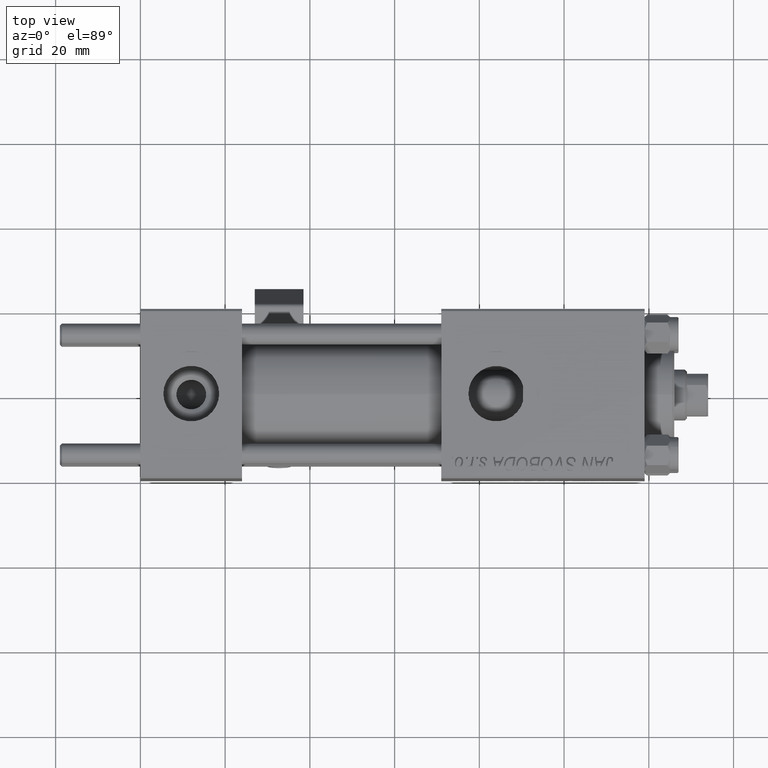
[diagram: clean part render]
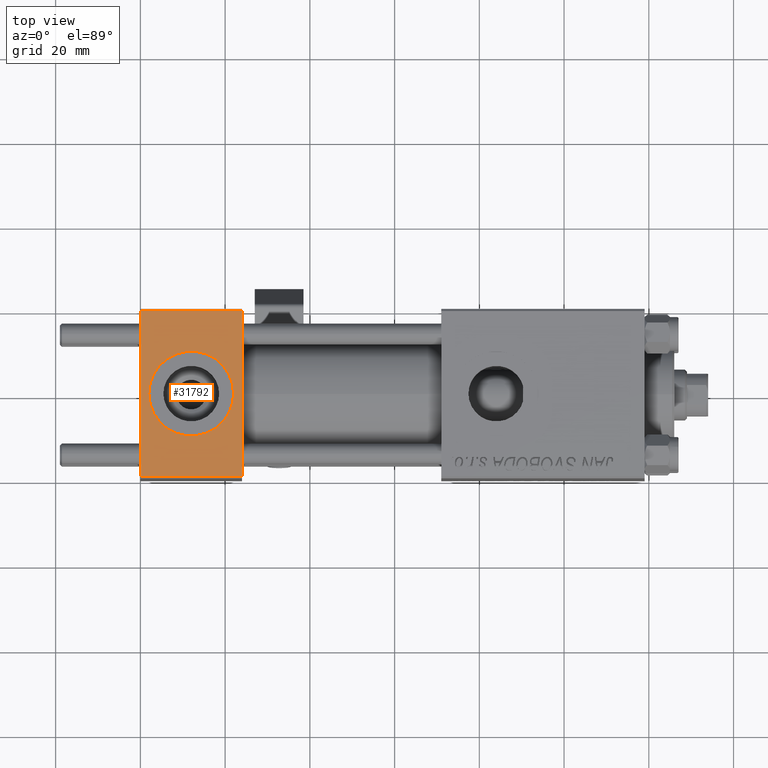
[diagram: same view with one face highlighted and labeled with its STEP entity id]
A machine part, top view. The second image highlights one B-rep face of the part: STEP entity #31792.
In plain terms, the highlighted planar face has unit normal (0, 0, -1).
Its self-contained STEP definition (entity closure, byte-faithful):
#303 = VERTEX_POINT ( 'NONE', #27810 ) ;
#929 = DIRECTION ( 'NONE',  ( 0.000000000000000000, 2.602085213965210149E-16, -1.000000000000000000 ) ) ;
#1559 = VERTEX_POINT ( 'NONE', #28558 ) ;
#4004 = DIRECTION ( 'NONE',  ( 1.000000000000000000, 0.000000000000000000, 0.000000000000000000 ) ) ;
#4575 = LINE ( 'NONE', #17106, #47716 ) ;
#5005 = CARTESIAN_POINT ( 'NONE',  ( 24.00000000000000000, 20.00000000000000000, 20.00000000000000000 ) ) ;
#8407 = VERTEX_POINT ( 'NONE', #18701 ) ;
#10009 = DIRECTION ( 'NONE',  ( 0.000000000000000000, 0.000000000000000000, 1.000000000000000000 ) ) ;
#10269 = CARTESIAN_POINT ( 'NONE',  ( 12.00000000000000000, 1.540743955509788682E-30, 19.99999999999999645 ) ) ;
#10307 = ORIENTED_EDGE ( 'NONE', *, *, #52041, .F. ) ;
#11350 = LINE ( 'NONE', #44294, #35772 ) ;
#13795 = ORIENTED_EDGE ( 'NONE', *, *, #25085, .T. ) ;
#13898 = LINE ( 'NONE', #17438, #43218 ) ;
#14216 = EDGE_CURVE ( 'NONE', #26763, #8407, #48820, .T. ) ;
#15784 = AXIS2_PLACEMENT_3D ( 'NONE', #20896, #20359, #4004 ) ;
#16690 = VERTEX_POINT ( 'NONE', #22974 ) ;
#16902 = ORIENTED_EDGE ( 'NONE', *, *, #33766, .T. ) ;
#17106 = CARTESIAN_POINT ( 'NONE',  ( 0.000000000000000000, 19.50000000000000000, 20.00000000000000000 ) ) ;
#17270 = FACE_OUTER_BOUND ( 'NONE', #37114, .T. ) ;
#17438 = CARTESIAN_POINT ( 'NONE',  ( 24.00000000000000000, -19.49999999999999289, 19.99999999999998934 ) ) ;
#17553 = DIRECTION ( 'NONE',  ( 0.000000000000000000, 1.000000000000000000, 2.602085213965210149E-16 ) ) ;
#18701 = CARTESIAN_POINT ( 'NONE',  ( 2.000000000000003553, 1.224646799147354440E-15, 19.99999999999999645 ) ) ;
#19732 = CARTESIAN_POINT ( 'NONE',  ( 0.000000000000000000, 20.00000000000000000, 20.00000000000000000 ) ) ;
#20359 = DIRECTION ( 'NONE',  ( 0.000000000000000000, 0.000000000000000000, 1.000000000000000000 ) ) ;
#20896 = CARTESIAN_POINT ( 'NONE',  ( 12.00000000000000000, 1.540743955509788682E-30, 19.99999999999999645 ) ) ;
#21396 = AXIS2_PLACEMENT_3D ( 'NONE', #5005, #929, #17553 ) ;
#22974 = CARTESIAN_POINT ( 'NONE',  ( 24.00000000000000000, -19.49999999999999289, 19.99999999999998934 ) ) ;
#23299 = CARTESIAN_POINT ( 'NONE',  ( 22.00000000000000000, 1.540743955509788682E-30, 19.99999999999999645 ) ) ;
#25044 = ORIENTED_EDGE ( 'NONE', *, *, #14216, .F. ) ;
#25059 = CARTESIAN_POINT ( 'NONE',  ( 24.00000000000000000, 19.50000000000000000, 20.00000000000000000 ) ) ;
#25085 = EDGE_CURVE ( 'NONE', #303, #1559, #27177, .T. ) ;
#26195 = AXIS2_PLACEMENT_3D ( 'NONE', #10269, #10009, #26625 ) ;
#26625 = DIRECTION ( 'NONE',  ( 1.000000000000000000, 0.000000000000000000, 0.000000000000000000 ) ) ;
#26763 = VERTEX_POINT ( 'NONE', #23299 ) ;
#27177 = LINE ( 'NONE', #19732, #49074 ) ;
#27810 = CARTESIAN_POINT ( 'NONE',  ( 0.000000000000000000, 19.50000000000000000, 20.00000000000000000 ) ) ;
#27961 = DIRECTION ( 'NONE',  ( 0.000000000000000000, -1.000000000000000000, -2.602085213965210149E-16 ) ) ;
#28558 = CARTESIAN_POINT ( 'NONE',  ( 0.000000000000000000, -19.49999999999999289, 19.99999999999998934 ) ) ;
#29195 = EDGE_LOOP ( 'NONE', ( #25044, #35637 ) ) ;
#29281 = VERTEX_POINT ( 'NONE', #25059 ) ;
#31792 = ADVANCED_FACE ( 'NONE', ( #38262, #17270 ), #42334, .F. ) ;
#33766 = EDGE_CURVE ( 'NONE', #1559, #16690, #13898, .T. ) ;
#35637 = ORIENTED_EDGE ( 'NONE', *, *, #51953, .F. ) ;
#35772 = VECTOR ( 'NONE', #27961, 1000.000000000000000 ) ;
#37114 = EDGE_LOOP ( 'NONE', ( #13795, #16902, #10307, #43556 ) ) ;
#38262 = FACE_BOUND ( 'NONE', #29195, .T. ) ;
#38648 = DIRECTION ( 'NONE',  ( -1.000000000000000000, 0.000000000000000000, 0.000000000000000000 ) ) ;
#42334 = PLANE ( 'NONE',  #21396 ) ;
#42489 = DIRECTION ( 'NONE',  ( 1.000000000000000000, 0.000000000000000000, 0.000000000000000000 ) ) ;
#43218 = VECTOR ( 'NONE', #42489, 1000.000000000000000 ) ;
#43556 = ORIENTED_EDGE ( 'NONE', *, *, #47842, .T. ) ;
#44294 = CARTESIAN_POINT ( 'NONE',  ( 24.00000000000000000, 20.00000000000000000, 20.00000000000000000 ) ) ;
#47716 = VECTOR ( 'NONE', #38648, 1000.000000000000000 ) ;
#47842 = EDGE_CURVE ( 'NONE', #29281, #303, #4575, .T. ) ;
#48820 = CIRCLE ( 'NONE', #15784, 9.999999999999998224 ) ;
#48867 = DIRECTION ( 'NONE',  ( 0.000000000000000000, -1.000000000000000000, -2.602085213965210149E-16 ) ) ;
#49074 = VECTOR ( 'NONE', #48867, 1000.000000000000000 ) ;
#51953 = EDGE_CURVE ( 'NONE', #8407, #26763, #53109, .T. ) ;
#52041 = EDGE_CURVE ( 'NONE', #29281, #16690, #11350, .T. ) ;
#53109 = CIRCLE ( 'NONE', #26195, 9.999999999999998224 ) ;